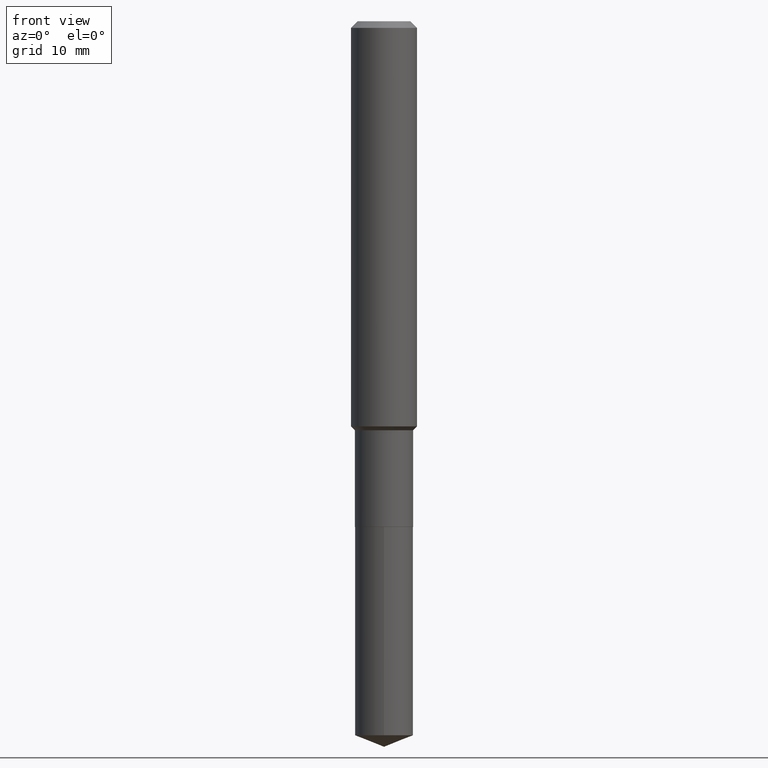
[diagram: clean part render]
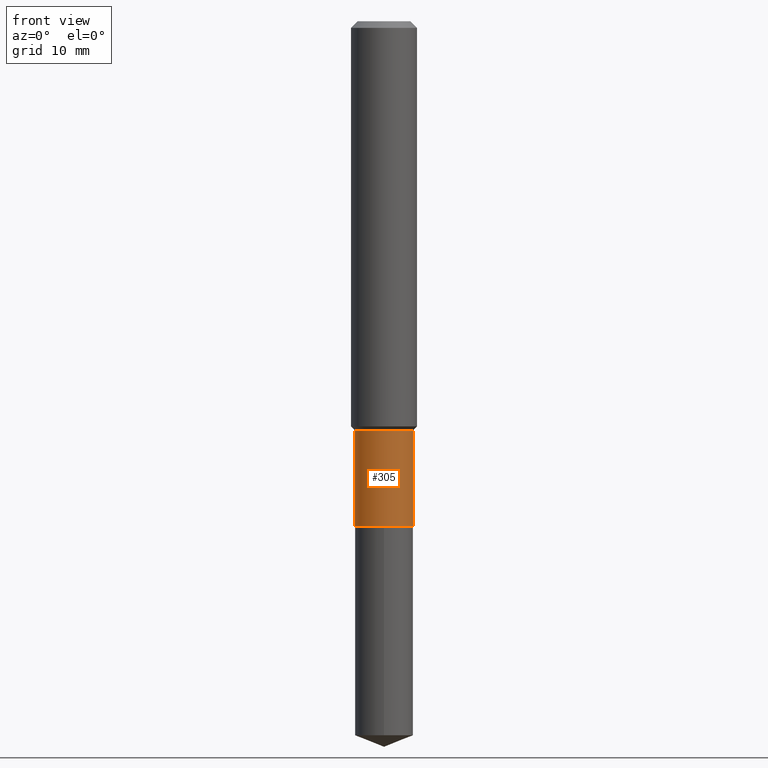
[diagram: same view with one face highlighted and labeled with its STEP entity id]
A machine part, front view. The second image highlights one B-rep face of the part: STEP entity #305.
In plain terms, the highlighted cylindrical surface (edge-blend (fillet) strip) has radius 2.6505 mm, axis along (-0, 0, 1).
Its self-contained STEP definition (entity closure, byte-faithful):
#10 = DIRECTION ( 'NONE',  ( -2.445468806185136597E-29, 3.491481338843145583E-15, 1.000000000000000000 ) ) ;
#15 = EDGE_LOOP ( 'NONE', ( #443, #96, #458, #266 ) ) ;
#30 = VERTEX_POINT ( 'NONE', #33 ) ;
#31 = VERTEX_POINT ( 'NONE', #182 ) ;
#33 = CARTESIAN_POINT ( 'NONE',  ( -0.1043499999999999706, -4.976198495723869965E-15, -1.810499999999999998 ) ) ;
#41 = FACE_OUTER_BOUND ( 'NONE', #15, .T. ) ;
#53 = LINE ( 'NONE', #187, #134 ) ;
#59 = EDGE_CURVE ( 'NONE', #355, #31, #166, .T. ) ;
#84 = DIRECTION ( 'NONE',  ( -2.445468806185136597E-29, 3.491481338843145583E-15, 1.000000000000000000 ) ) ;
#90 = CARTESIAN_POINT ( 'NONE',  ( -0.1043499999999999567, -4.976198495723869965E-15, -1.464699999999999891 ) ) ;
#95 = DIRECTION ( 'NONE',  ( -2.445468806185136877E-29, 3.491481338843145188E-15, 1.000000000000000000 ) ) ;
#96 = ORIENTED_EDGE ( 'NONE', *, *, #239, .T. ) ;
#116 = DIRECTION ( 'NONE',  ( 1.000000000000000000, -6.982962677686265133E-15, 0.000000000000000000 ) ) ;
#123 = AXIS2_PLACEMENT_3D ( 'NONE', #423, #84, #300 ) ;
#134 = VECTOR ( 'NONE', #464, 39.37007874015748143 ) ;
#145 = DIRECTION ( 'NONE',  ( 1.000000000000000000, -6.982962677686265922E-15, 0.000000000000000000 ) ) ;
#162 = LINE ( 'NONE', #206, #320 ) ;
#166 = CIRCLE ( 'NONE', #228, 0.1043499999999999567 ) ;
#182 = CARTESIAN_POINT ( 'NONE',  ( 0.1043499999999999567, -5.842644872420116125E-15, -1.464699999999999891 ) ) ;
#187 = CARTESIAN_POINT ( 'NONE',  ( -0.1043499999999999706, 7.414513447656643348E-16, -5.132908766680992704E-30 ) ) ;
#206 = CARTESIAN_POINT ( 'NONE',  ( 0.1043499999999999706, -7.286721554165617206E-16, 5.088290465543058008E-30 ) ) ;
#219 = EDGE_CURVE ( 'NONE', #30, #355, #53, .T. ) ;
#228 = AXIS2_PLACEMENT_3D ( 'NONE', #333, #257, #145 ) ;
#233 = CARTESIAN_POINT ( 'NONE',  ( 0.1043499999999999706, -7.049999119392076113E-15, -1.810499999999999998 ) ) ;
#239 = EDGE_CURVE ( 'NONE', #30, #246, #410, .T. ) ;
#246 = VERTEX_POINT ( 'NONE', #233 ) ;
#257 = DIRECTION ( 'NONE',  ( -2.445468806185136597E-29, 3.491481338843145583E-15, 1.000000000000000000 ) ) ;
#266 = ORIENTED_EDGE ( 'NONE', *, *, #59, .F. ) ;
#300 = DIRECTION ( 'NONE',  ( 1.000000000000000000, -6.982962677686266711E-15, 4.876176775795936353E-29 ) ) ;
#305 = ADVANCED_FACE ( 'NONE', ( #41 ), #467, .T. ) ;
#309 = CARTESIAN_POINT ( 'NONE',  ( 4.427521273598189436E-29, -6.321326963975514491E-15, -1.810499999999999998 ) ) ;
#320 = VECTOR ( 'NONE', #95, 39.37007874015748143 ) ;
#333 = CARTESIAN_POINT ( 'NONE',  ( 3.581878160419369254E-29, -5.113972717003554503E-15, -1.464699999999999891 ) ) ;
#343 = AXIS2_PLACEMENT_3D ( 'NONE', #309, #10, #116 ) ;
#355 = VERTEX_POINT ( 'NONE', #90 ) ;
#410 = CIRCLE ( 'NONE', #343, 0.1043499999999999706 ) ;
#421 = EDGE_CURVE ( 'NONE', #246, #31, #162, .T. ) ;
#423 = CARTESIAN_POINT ( 'NONE',  ( 0.000000000000000000, 0.000000000000000000, 0.000000000000000000 ) ) ;
#443 = ORIENTED_EDGE ( 'NONE', *, *, #219, .F. ) ;
#458 = ORIENTED_EDGE ( 'NONE', *, *, #421, .T. ) ;
#464 = DIRECTION ( 'NONE',  ( -2.445468806185136877E-29, 3.491481338843145188E-15, 1.000000000000000000 ) ) ;
#467 = CYLINDRICAL_SURFACE ( 'NONE', #123, 0.1043499999999999706 ) ;